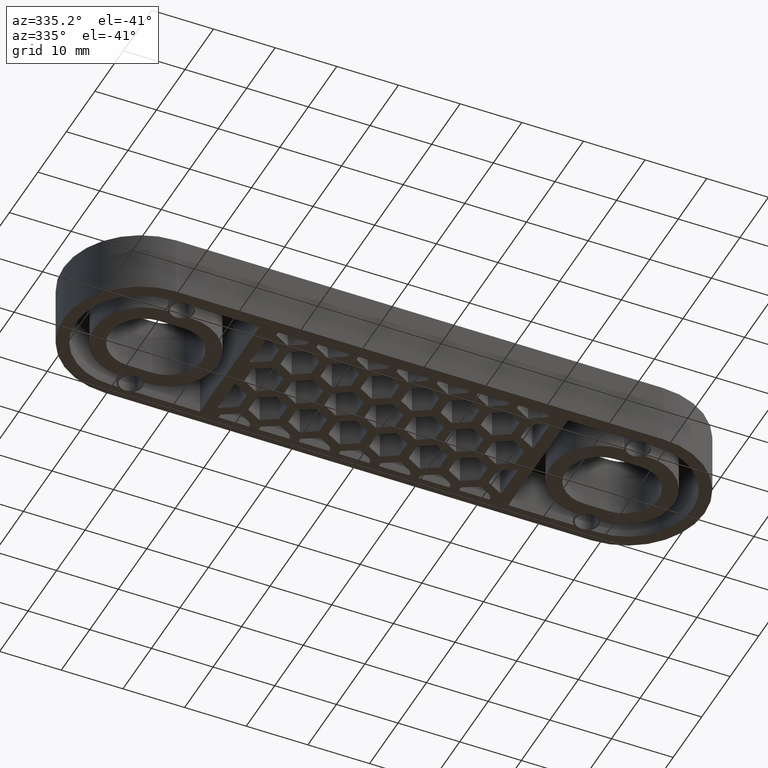
[diagram: clean part render]
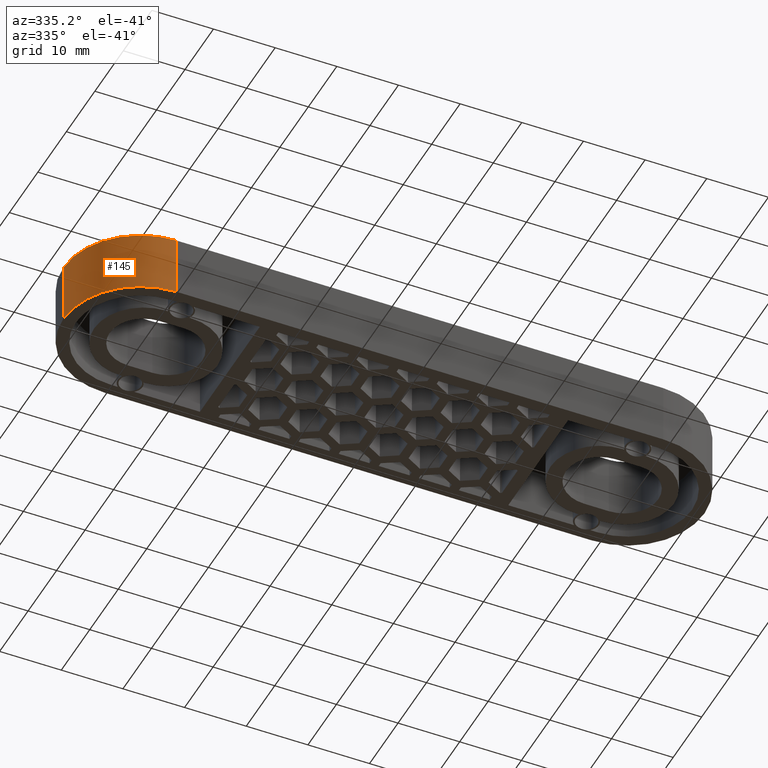
[diagram: same view with one face highlighted and labeled with its STEP entity id]
A machine part, auxiliary view. The second image highlights one B-rep face of the part: STEP entity #145.
In plain terms, the highlighted cylindrical surface (partial cylindrical patch) has radius 12.5 mm, axis along (-0, -0, -1).
Its self-contained STEP definition (entity closure, byte-faithful):
#145 = ADVANCED_FACE( '', ( #577 ), #578, .T. );
#577 = FACE_OUTER_BOUND( '', #1343, .T. );
#578 = CYLINDRICAL_SURFACE( '', #1344, 12.5000000000000 );
#1343 = EDGE_LOOP( '', ( #2548, #2549, #2550, #2551 ) );
#1344 = AXIS2_PLACEMENT_3D( '', #2552, #2553, #2554 );
#2548 = ORIENTED_EDGE( '', *, *, #4806, .T. );
#2549 = ORIENTED_EDGE( '', *, *, #5121, .F. );
#2550 = ORIENTED_EDGE( '', *, *, #5122, .F. );
#2551 = ORIENTED_EDGE( '', *, *, #5119, .T. );
#2552 = CARTESIAN_POINT( '', ( -39.5000000000000, -1.38777878078144E-014, -1.38777878078145E-014 ) );
#2553 = DIRECTION( '', ( -1.34524652575183E-047, -6.12303176911189E-017, -1.00000000000000 ) );
#2554 = DIRECTION( '', ( -1.00000000000000, -5.05319527541181E-016, 3.09408752068726E-032 ) );
#4806 = EDGE_CURVE( '', #5709, #5707, #5710, .T. );
#5119 = EDGE_CURVE( '', #6293, #5709, #6294, .T. );
#5121 = EDGE_CURVE( '', #6296, #5707, #6297, .T. );
#5122 = EDGE_CURVE( '', #6293, #6296, #6298, .T. );
#5707 = VERTEX_POINT( '', #7203 );
#5709 = VERTEX_POINT( '', #7205 );
#5710 = CIRCLE( '', #7206, 12.5000000000000 );
#6293 = VERTEX_POINT( '', #8064 );
#6294 = LINE( '', #8065, #8066 );
#6296 = VERTEX_POINT( '', #8069 );
#6297 = LINE( '', #8070, #8071 );
#6298 = CIRCLE( '', #8072, 12.5000000000000 );
#7203 = CARTESIAN_POINT( '', ( -51.9999999999999, 3.10190241548107E-015, 9.99999999999999 ) );
#7205 = CARTESIAN_POINT( '', ( -39.5000000000000, -12.5000000000000, 9.99999999999999 ) );
#7206 = AXIS2_PLACEMENT_3D( '', #9474, #9475, #9476 );
#8064 = CARTESIAN_POINT( '', ( -39.5000000000000, -12.5000000000000, -1.31124088366755E-014 ) );
#8065 = CARTESIAN_POINT( '', ( -39.5000000000000, -12.5000000000000, -1.31124088366755E-014 ) );
#8066 = VECTOR( '', #9863, 1000.00000000000 );
#8069 = CARTESIAN_POINT( '', ( -51.9999999999999, 2.48959923856988E-015, -1.38777878078145E-014 ) );
#8070 = CARTESIAN_POINT( '', ( -51.9999999999999, 2.48959923856988E-015, -1.38777878078145E-014 ) );
#8071 = VECTOR( '', #9865, 1000.00000000000 );
#8072 = AXIS2_PLACEMENT_3D( '', #9866, #9867, #9868 );
#9474 = CARTESIAN_POINT( '', ( -39.5000000000000, -1.32654846309032E-014, 9.99999999999999 ) );
#9475 = DIRECTION( '', ( 0.000000000000000, -6.12303176911189E-017, -1.00000000000000 ) );
#9476 = DIRECTION( '', ( 6.04903497083976E-016, 1.00000000000000, -6.12303176911189E-017 ) );
#9863 = DIRECTION( '', ( 0.000000000000000, 6.12303176911189E-017, 1.00000000000000 ) );
#9865 = DIRECTION( '', ( 0.000000000000000, 6.12303176911189E-017, 1.00000000000000 ) );
#9866 = CARTESIAN_POINT( '', ( -39.5000000000000, -1.38777878078144E-014, -1.38777878078145E-014 ) );
#9867 = DIRECTION( '', ( 0.000000000000000, -6.12303176911189E-017, -1.00000000000000 ) );
#9868 = DIRECTION( '', ( 6.04903497083976E-016, 1.00000000000000, -6.12303176911189E-017 ) );